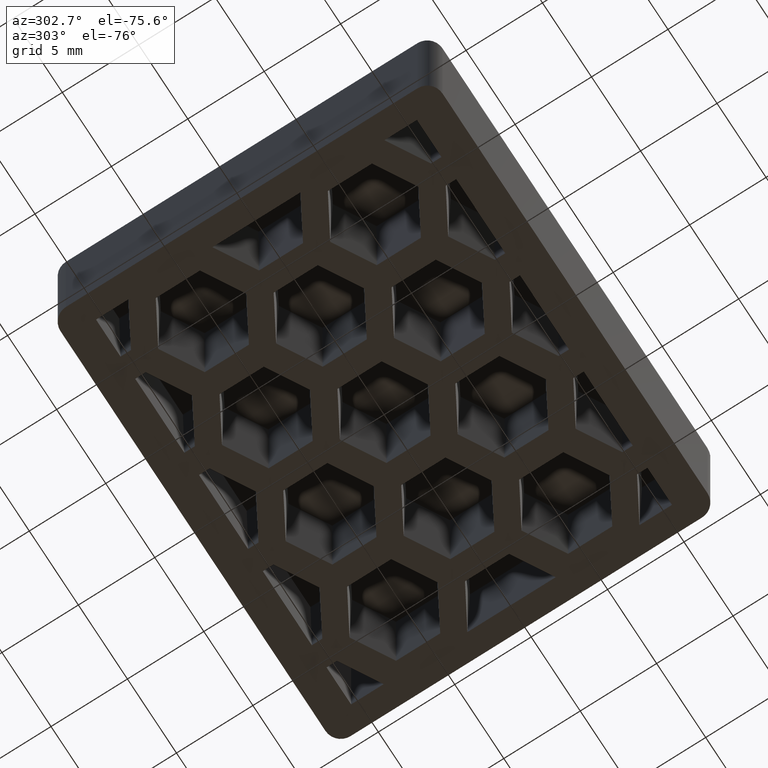
[diagram: clean part render]
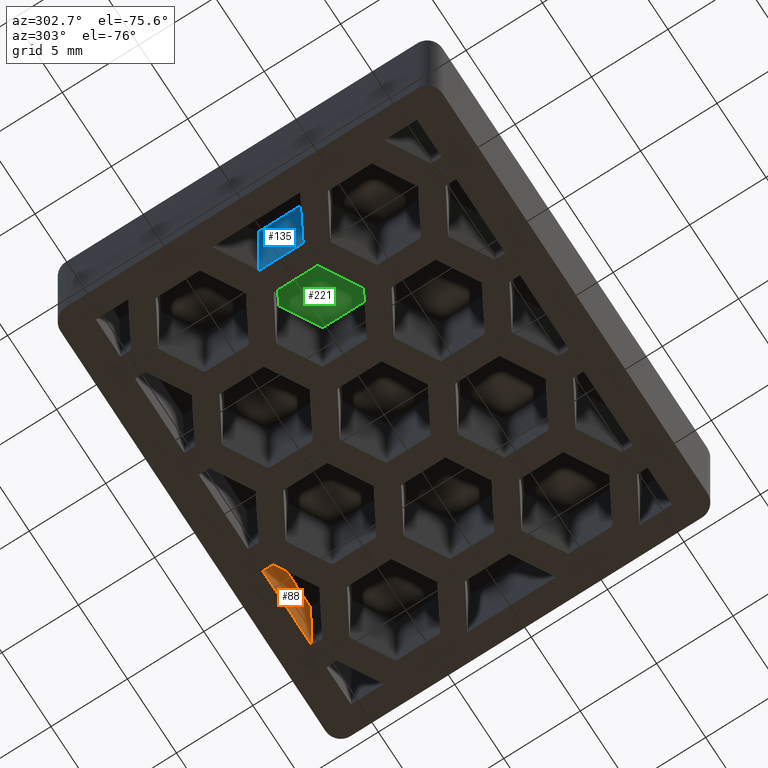
[diagram: same view with three faces highlighted in distinct colors, each labeled with its STEP entity id]
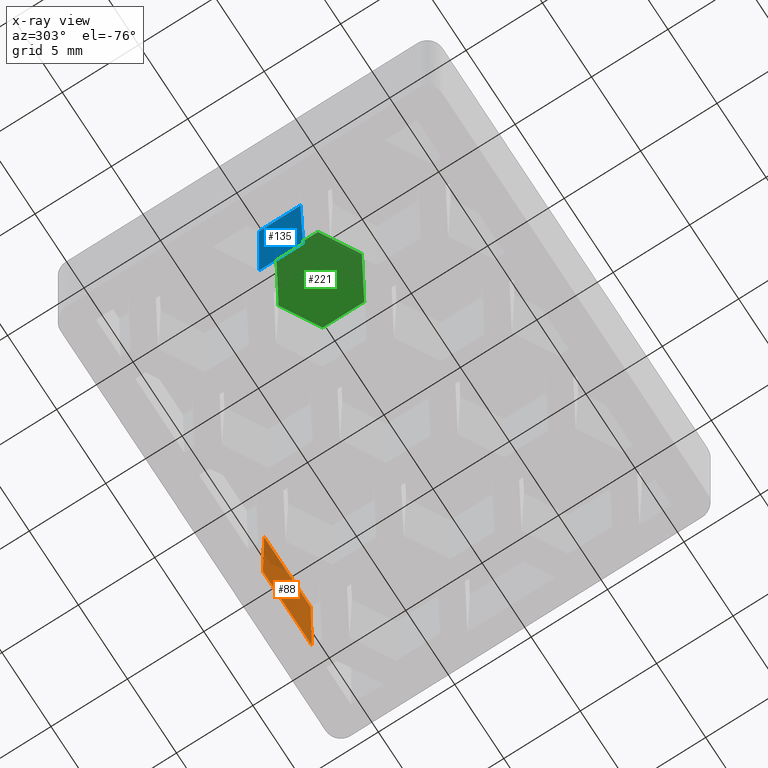
[diagram: x-ray of the same camera — body ghosted, the three highlighted faces saturated]
A machine part, auxiliary view with three faces highlighted in distinct colors.
The next image is the same camera in x-ray (body ghosted, the three faces saturated) — at least one of them is partly hidden behind the body in this view.
Their STEP definitions:

[orange] entity #88 — the highlighted planar face has unit normal (0, -1, 0).
#88 = ADVANCED_FACE( '', ( #322 ), #323, .T. );
#322 = FACE_OUTER_BOUND( '', #734, .T. );
#323 = PLANE( '', #735 );
#734 = EDGE_LOOP( '', ( #1341, #1342, #1343, #1344 ) );
#735 = AXIS2_PLACEMENT_3D( '', #1345, #1346, #1347 );
#1341 = ORIENTED_EDGE( '', *, *, #2617, .F. );
#1342 = ORIENTED_EDGE( '', *, *, #2789, .T. );
#1343 = ORIENTED_EDGE( '', *, *, #2792, .F. );
#1344 = ORIENTED_EDGE( '', *, *, #2795, .T. );
#1345 = CARTESIAN_POINT( '', ( -12.9999999999999, 10.4999999999999, -7.99999999991632 ) );
#1346 = DIRECTION( '', ( 0.000000000000000, -1.00000000000000, 6.12303176911189E-017 ) );
#1347 = DIRECTION( '', ( -1.00000000000000, 0.000000000000000, 0.000000000000000 ) );
#2617 = EDGE_CURVE( '', #3102, #3103, #3104, .T. );
#2789 = EDGE_CURVE( '', #3102, #3435, #3437, .T. );
#2792 = EDGE_CURVE( '', #3441, #3435, #3442, .T. );
#2795 = EDGE_CURVE( '', #3441, #3103, #3446, .T. );
#3102 = VERTEX_POINT( '', #3903 );
#3103 = VERTEX_POINT( '', #3904 );
#3104 = LINE( '', #3905, #3906 );
#3435 = VERTEX_POINT( '', #4395 );
#3437 = LINE( '', #4398, #4399 );
#3441 = VERTEX_POINT( '', #4405 );
#3442 = LINE( '', #4406, #4407 );
#3446 = LINE( '', #4413, #4414 );
#3903 = CARTESIAN_POINT( '', ( 9.00000000000000, 10.4999999999999, -7.58181223966397E-015 ) );
#3904 = CARTESIAN_POINT( '', ( 4.00000000000000, 10.4999999999999, -7.58181223966397E-015 ) );
#3905 = CARTESIAN_POINT( '', ( 25.5000000000000, 10.4999999999999, -1.45207061435712E-014 ) );
#3906 = VECTOR( '', #5121, 1000.00000000000 );
#4395 = CARTESIAN_POINT( '', ( 8.86035948057426, 10.4999999999999, 7.99999999999999 ) );
#4398 = CARTESIAN_POINT( '', ( 8.99329909721006, 10.4999999999999, 0.383894463727496 ) );
#4399 = VECTOR( '', #5317, 1000.00000000000 );
#4405 = CARTESIAN_POINT( '', ( 4.13964051942574, 10.4999999999999, 7.99999999999999 ) );
#4406 = CARTESIAN_POINT( '', ( -12.9999999999999, 10.4999999999999, 7.99999999999999 ) );
#4407 = VECTOR( '', #5320, 1000.00000000000 );
#4413 = CARTESIAN_POINT( '', ( 3.99482202966231, 10.4999999999999, -0.296645721971273 ) );
#4414 = VECTOR( '', #5323, 1000.00000000000 );
#5121 = DIRECTION( '', ( -1.00000000000000, 0.000000000000000, 0.000000000000000 ) );
#5317 = DIRECTION( '', ( -0.0174524064372835, 6.12209920171588E-017, 0.999847695156391 ) );
#5320 = DIRECTION( '', ( 1.00000000000000, 0.000000000000000, 0.000000000000000 ) );
#5323 = DIRECTION( '', ( -0.0174524064372835, -6.12209920171588E-017, -0.999847695156391 ) );

[blue] entity #135 — the highlighted planar face has unit normal (0.9998, 0, 0.0175).
#135 = ADVANCED_FACE( '', ( #418 ), #419, .F. );
#418 = FACE_OUTER_BOUND( '', #830, .T. );
#419 = PLANE( '', #831 );
#830 = EDGE_LOOP( '', ( #1667, #1668, #1669, #1670 ) );
#831 = AXIS2_PLACEMENT_3D( '', #1671, #1672, #1673 );
#1667 = ORIENTED_EDGE( '', *, *, #2606, .T. );
#1668 = ORIENTED_EDGE( '', *, *, #2876, .F. );
#1669 = ORIENTED_EDGE( '', *, *, #2877, .F. );
#1670 = ORIENTED_EDGE( '', *, *, #2878, .T. );
#1671 = CARTESIAN_POINT( '', ( -10.5000000000000, -1.44337567297407, -6.85051555290339E-015 ) );
#1672 = DIRECTION( '', ( 0.999847695156391, 5.00592885917089E-016, 0.0174524064372835 ) );
#1673 = DIRECTION( '', ( -0.0174524064372835, 6.12209920171588E-017, 0.999847695156391 ) );
#2606 = EDGE_CURVE( '', #3081, #3079, #3082, .T. );
#2876 = EDGE_CURVE( '', #3569, #3079, #3570, .T. );
#2877 = EDGE_CURVE( '', #3571, #3569, #3572, .T. );
#2878 = EDGE_CURVE( '', #3571, #3081, #3573, .T. );
#3079 = VERTEX_POINT( '', #3868 );
#3081 = VERTEX_POINT( '', #3871 );
#3082 = LINE( '', #3872, #3873 );
#3569 = VERTEX_POINT( '', #4613 );
#3570 = LINE( '', #4614, #4615 );
#3571 = VERTEX_POINT( '', #4616 );
#3572 = LINE( '', #4617, #4618 );
#3573 = LINE( '', #4619, #4620 );
#3868 = CARTESIAN_POINT( '', ( -10.5000000000000, -1.44337567297406, -6.85051555290339E-015 ) );
#3871 = CARTESIAN_POINT( '', ( -10.5000000000000, 1.44337567297407, -7.02727225491106E-015 ) );
#3872 = CARTESIAN_POINT( '', ( -10.5000000000000, -1.44337567297407, -6.85051555290339E-015 ) );
#3873 = VECTOR( '', #5110, 1000.00000000000 );
#4613 = CARTESIAN_POINT( '', ( -10.6396405194257, -1.36275418149383, 7.99999999999999 ) );
#4614 = CARTESIAN_POINT( '', ( -10.5000000000000, -1.44337567297406, -6.85051555290339E-015 ) );
#4615 = VECTOR( '', #5412, 1000.00000000000 );
#4616 = CARTESIAN_POINT( '', ( -10.6396405194257, 1.36275418149384, 7.99999999999999 ) );
#4617 = CARTESIAN_POINT( '', ( -10.6396405194257, -1.44337567297407, 7.99999999999999 ) );
#4618 = VECTOR( '', #5413, 1000.00000000000 );
#4619 = CARTESIAN_POINT( '', ( -10.4977665924919, 1.44466513140006, -0.127951830442848 ) );
#4620 = VECTOR( '', #5414, 1000.00000000000 );
#5110 = DIRECTION( '', ( 4.99600361081321E-016, -1.00000000000000, 6.12303176911189E-017 ) );
#5412 = DIRECTION( '', ( 0.0174515205435363, -0.0100756400835790, -0.999796942337605 ) );
#5413 = DIRECTION( '', ( 4.99600361081321E-016, -1.00000000000000, 6.12303176911189E-017 ) );
#5414 = DIRECTION( '', ( 0.0174515205435363, 0.0100756400835789, -0.999796942337605 ) );

[green] entity #221 — the highlighted planar face has unit normal (0, -0, -1).
#221 = ADVANCED_FACE( '', ( #590 ), #591, .T. );
#590 = FACE_OUTER_BOUND( '', #1002, .T. );
#591 = PLANE( '', #1003 );
#1002 = EDGE_LOOP( '', ( #2287, #2288, #2289, #2290, #2291, #2292 ) );
#1003 = AXIS2_PLACEMENT_3D( '', #2293, #2294, #2295 );
#2287 = ORIENTED_EDGE( '', *, *, #2875, .T. );
#2288 = ORIENTED_EDGE( '', *, *, #2865, .T. );
#2289 = ORIENTED_EDGE( '', *, *, #2868, .T. );
#2290 = ORIENTED_EDGE( '', *, *, #2870, .T. );
#2291 = ORIENTED_EDGE( '', *, *, #2872, .T. );
#2292 = ORIENTED_EDGE( '', *, *, #2874, .T. );
#2293 = CARTESIAN_POINT( '', ( -12.9999999999999, 10.4999999999999, 7.99999999999999 ) );
#2294 = DIRECTION( '', ( 0.000000000000000, -6.12303176911189E-017, -1.00000000000000 ) );
#2295 = DIRECTION( '', ( 0.000000000000000, 1.00000000000000, -6.12303176911189E-017 ) );
#2865 = EDGE_CURVE( '', #3553, #3551, #3554, .T. );
#2868 = EDGE_CURVE( '', #3551, #3556, #3558, .T. );
#2870 = EDGE_CURVE( '', #3556, #3559, #3561, .T. );
#2872 = EDGE_CURVE( '', #3559, #3562, #3564, .T. );
#2874 = EDGE_CURVE( '', #3562, #3565, #3567, .T. );
#2875 = EDGE_CURVE( '', #3565, #3553, #3568, .T. );
#3551 = VERTEX_POINT( '', #4583 );
#3553 = VERTEX_POINT( '', #4586 );
#3554 = LINE( '', #4587, #4588 );
#3556 = VERTEX_POINT( '', #4591 );
#3558 = LINE( '', #4594, #4595 );
#3559 = VERTEX_POINT( '', #4596 );
#3561 = LINE( '', #4599, #4600 );
#3562 = VERTEX_POINT( '', #4601 );
#3564 = LINE( '', #4604, #4605 );
#3565 = VERTEX_POINT( '', #4606 );
#3567 = LINE( '', #4609, #4610 );
#3568 = LINE( '', #4611, #4612 );
#4583 = CARTESIAN_POINT( '', ( -4.13964051942574, -1.36275418149383, 7.99999999999999 ) );
#4586 = CARTESIAN_POINT( '', ( -4.13964051942574, 1.36275418149383, 7.99999999999999 ) );
#4587 = CARTESIAN_POINT( '', ( -4.13964051942574, -1.44337567297406, 7.99999999999999 ) );
#4588 = VECTOR( '', #5401, 1000.00000000000 );
#4591 = CARTESIAN_POINT( '', ( -6.50000000000000, -2.72550836298767, 7.99999999999999 ) );
#4594 = CARTESIAN_POINT( '', ( -4.06982025971287, -1.32244343575372, 7.99999999999999 ) );
#4595 = VECTOR( '', #5404, 1000.00000000000 );
#4596 = CARTESIAN_POINT( '', ( -8.86035948057426, -1.36275418149384, 7.99999999999999 ) );
#4599 = CARTESIAN_POINT( '', ( -5.18017974028713, -3.48750694521482, 7.99999999999999 ) );
#4600 = VECTOR( '', #5406, 1000.00000000000 );
#4601 = CARTESIAN_POINT( '', ( -8.86035948057426, 1.36275418149383, 7.99999999999999 ) );
#4604 = CARTESIAN_POINT( '', ( -8.86035948057426, -1.44337567297406, 7.99999999999999 ) );
#4605 = VECTOR( '', #5408, 1000.00000000000 );
#4606 = CARTESIAN_POINT( '', ( -6.50000000000000, 2.72550836298767, 7.99999999999999 ) );
#4609 = CARTESIAN_POINT( '', ( -6.43017974028713, 2.76581910872778, 7.99999999999999 ) );
#4610 = VECTOR( '', #5410, 1000.00000000000 );
#4611 = CARTESIAN_POINT( '', ( -2.81982025971287, 0.600755599266688, 7.99999999999999 ) );
#4612 = VECTOR( '', #5411, 1000.00000000000 );
#5401 = DIRECTION( '', ( 4.99600361081321E-016, -1.00000000000000, 6.12303176911189E-017 ) );
#5404 = DIRECTION( '', ( -0.866025403784439, -0.500000000000000, 3.06151588455594E-017 ) );
#5406 = DIRECTION( '', ( -0.866025403784439, 0.500000000000000, -3.06151588455594E-017 ) );
#5408 = DIRECTION( '', ( 1.11022302462516E-016, 1.00000000000000, -6.12303176911189E-017 ) );
#5410 = DIRECTION( '', ( 0.866025403784438, 0.500000000000000, -3.06151588455594E-017 ) );
#5411 = DIRECTION( '', ( 0.866025403784439, -0.500000000000000, 3.06151588455594E-017 ) );